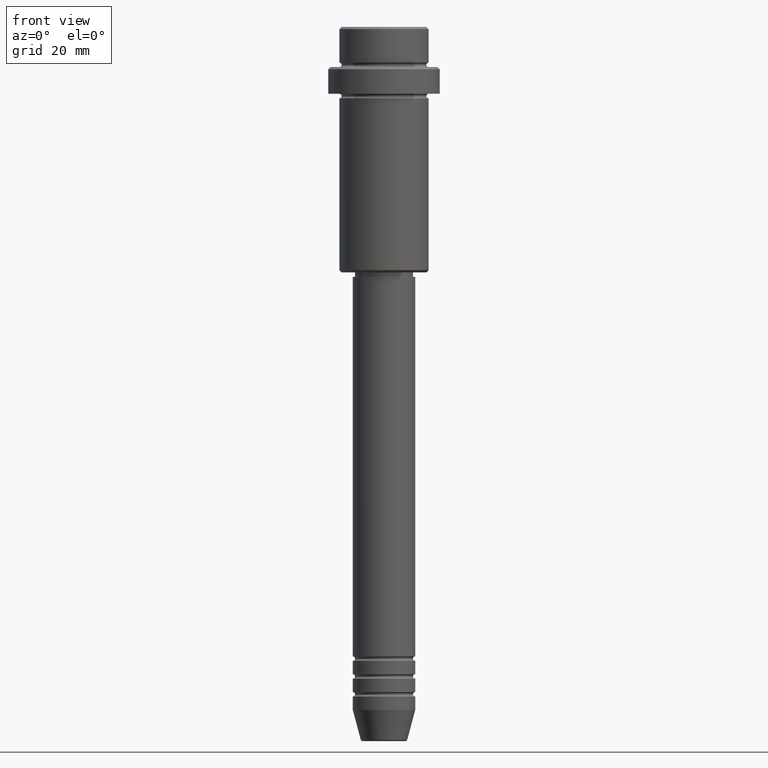
[diagram: clean part render]
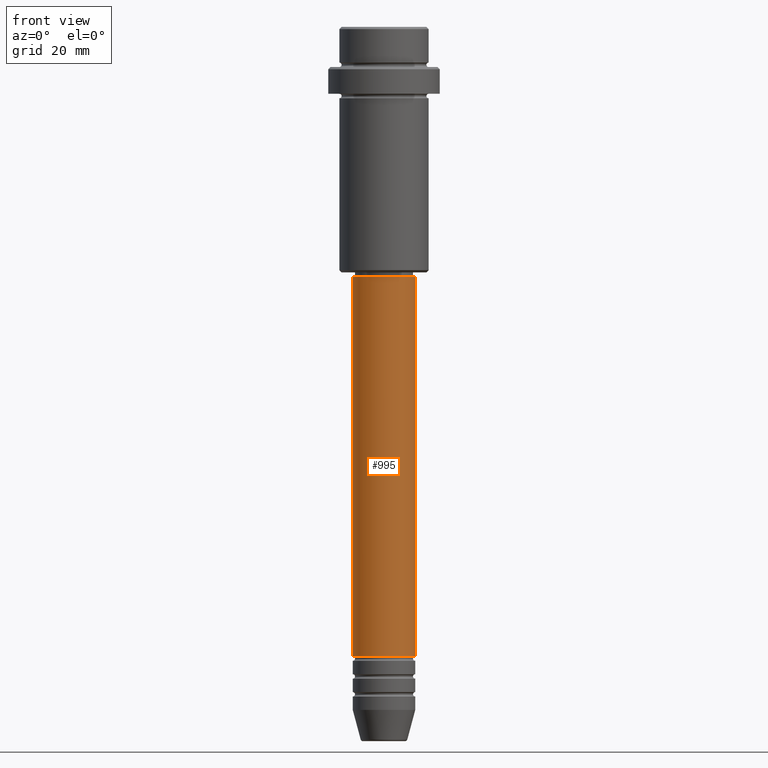
[diagram: same view with one face highlighted and labeled with its STEP entity id]
A machine part, front view. The second image highlights one B-rep face of the part: STEP entity #995.
In plain terms, the highlighted cylindrical surface (edge-blend (fillet) strip) has radius 7 mm, axis along (-0, -0, 1).
Its self-contained STEP definition (entity closure, byte-faithful):
#85 = DIRECTION ( 'NONE',  ( -0.000000000000000000, -0.000000000000000000, 1.000000000000000000 ) ) ;
#96 = DIRECTION ( 'NONE',  ( 1.000000000000000000, 0.000000000000000000, 0.000000000000000000 ) ) ;
#203 = LINE ( 'NONE', #321, #536 ) ;
#212 = CARTESIAN_POINT ( 'NONE',  ( 0.000000000000000000, 0.000000000000000000, 0.000000000000000000 ) ) ;
#272 = DIRECTION ( 'NONE',  ( 1.000000000000000000, 0.000000000000000000, 0.000000000000000000 ) ) ;
#284 = VERTEX_POINT ( 'NONE', #365 ) ;
#321 = CARTESIAN_POINT ( 'NONE',  ( -7.000000000000000000, 8.572527594031473190E-16, 0.000000000000000000 ) ) ;
#358 = DIRECTION ( 'NONE',  ( -0.000000000000000000, -0.000000000000000000, 1.000000000000000000 ) ) ;
#365 = CARTESIAN_POINT ( 'NONE',  ( -7.000000000000000000, 8.572527594031473190E-16, -140.9999999999999147 ) ) ;
#371 = DIRECTION ( 'NONE',  ( -0.000000000000000000, -0.000000000000000000, 1.000000000000000000 ) ) ;
#405 = EDGE_LOOP ( 'NONE', ( #1141, #1367, #878, #596 ) ) ;
#415 = CARTESIAN_POINT ( 'NONE',  ( 0.000000000000000000, 0.000000000000000000, -140.9999999999999147 ) ) ;
#474 = CARTESIAN_POINT ( 'NONE',  ( 7.000000000000000000, 0.000000000000000000, 0.000000000000000000 ) ) ;
#482 = LINE ( 'NONE', #474, #891 ) ;
#489 = VERTEX_POINT ( 'NONE', #1105 ) ;
#496 = AXIS2_PLACEMENT_3D ( 'NONE', #794, #358, #272 ) ;
#536 = VECTOR ( 'NONE', #1168, 1000.000000000000000 ) ;
#554 = CARTESIAN_POINT ( 'NONE',  ( -7.000000000000000000, 8.572527594031473190E-16, -55.99999999999999289 ) ) ;
#596 = ORIENTED_EDGE ( 'NONE', *, *, #1139, .F. ) ;
#708 = CIRCLE ( 'NONE', #939, 7.000000000000000000 ) ;
#761 = EDGE_CURVE ( 'NONE', #284, #999, #203, .T. ) ;
#774 = DIRECTION ( 'NONE',  ( -0.000000000000000000, -0.000000000000000000, 1.000000000000000000 ) ) ;
#779 = EDGE_CURVE ( 'NONE', #284, #1178, #708, .T. ) ;
#794 = CARTESIAN_POINT ( 'NONE',  ( 0.000000000000000000, 0.000000000000000000, -55.99999999999999289 ) ) ;
#878 = ORIENTED_EDGE ( 'NONE', *, *, #1069, .T. ) ;
#891 = VECTOR ( 'NONE', #371, 1000.000000000000000 ) ;
#939 = AXIS2_PLACEMENT_3D ( 'NONE', #415, #85, #96 ) ;
#995 = ADVANCED_FACE ( 'NONE', ( #1204 ), #1097, .T. ) ;
#999 = VERTEX_POINT ( 'NONE', #554 ) ;
#1016 = CARTESIAN_POINT ( 'NONE',  ( 7.000000000000000000, 0.000000000000000000, -140.9999999999999147 ) ) ;
#1066 = DIRECTION ( 'NONE',  ( 1.000000000000000000, 0.000000000000000000, 0.000000000000000000 ) ) ;
#1069 = EDGE_CURVE ( 'NONE', #1178, #489, #482, .T. ) ;
#1097 = CYLINDRICAL_SURFACE ( 'NONE', #1242, 7.000000000000000000 ) ;
#1103 = CIRCLE ( 'NONE', #496, 7.000000000000000000 ) ;
#1105 = CARTESIAN_POINT ( 'NONE',  ( 7.000000000000000000, 0.000000000000000000, -55.99999999999999289 ) ) ;
#1139 = EDGE_CURVE ( 'NONE', #999, #489, #1103, .T. ) ;
#1141 = ORIENTED_EDGE ( 'NONE', *, *, #761, .F. ) ;
#1168 = DIRECTION ( 'NONE',  ( -0.000000000000000000, -0.000000000000000000, 1.000000000000000000 ) ) ;
#1178 = VERTEX_POINT ( 'NONE', #1016 ) ;
#1204 = FACE_OUTER_BOUND ( 'NONE', #405, .T. ) ;
#1242 = AXIS2_PLACEMENT_3D ( 'NONE', #212, #774, #1066 ) ;
#1367 = ORIENTED_EDGE ( 'NONE', *, *, #779, .T. ) ;